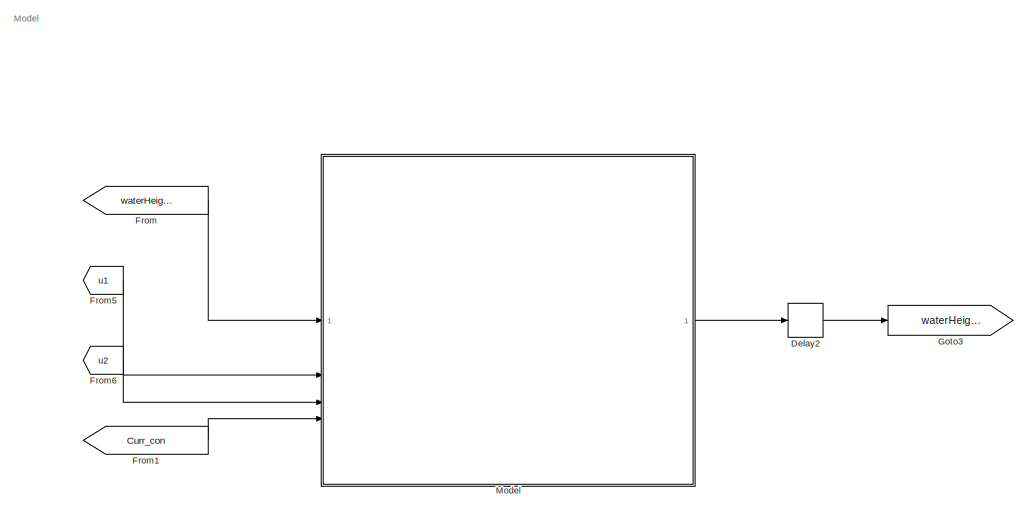
[diagram: root canvas - part 1/3, right side, full height]
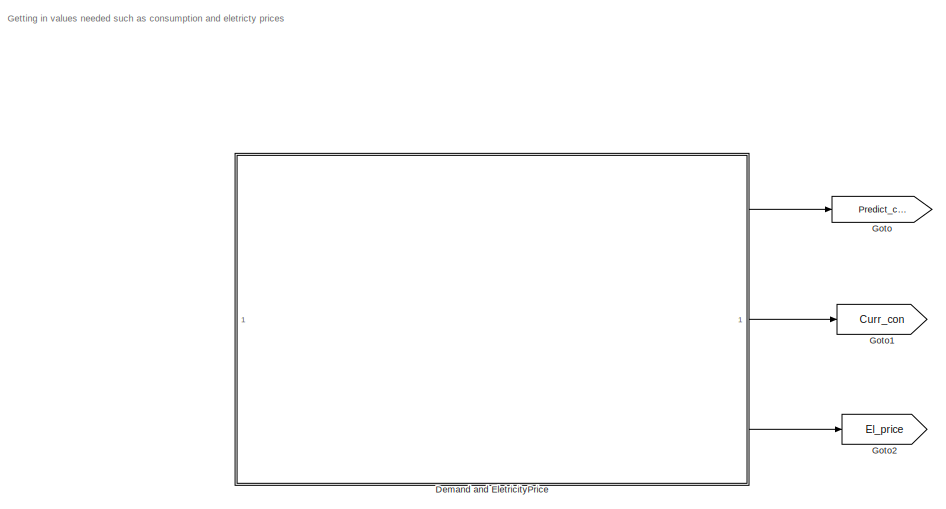
[diagram: root canvas - part 2/3, left side, full height]
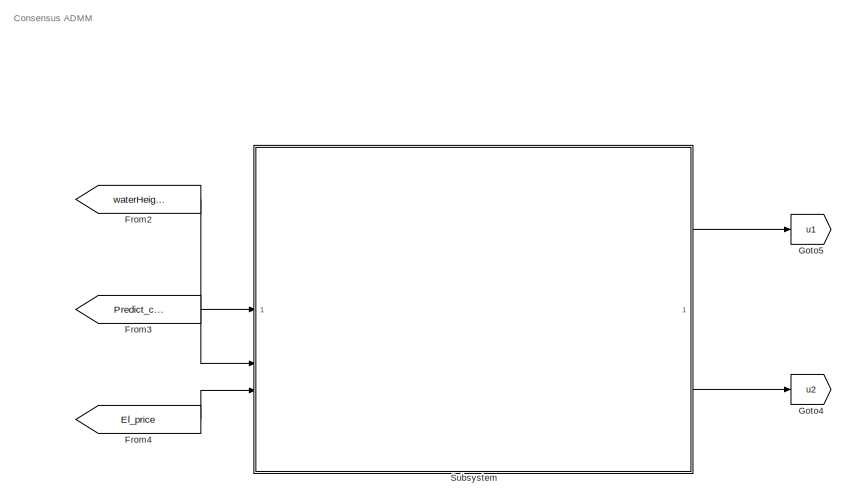
[diagram: root canvas - part 3/3, center side, full height]
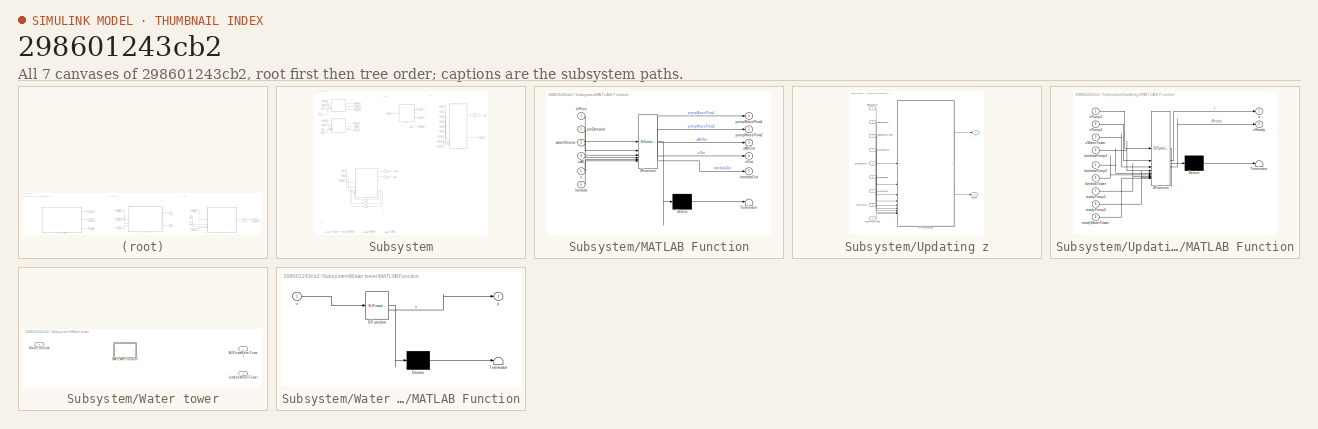
[diagram: thumbnail index - all 7 canvases of the model, root first then tree order]
MODEL slx_298601243cb2
KIND model
CONFIG AbsTol = auto
CONFIG EnableMultiTasking = off
CONFIG FixedStep = auto
CONFIG MaxStep = auto
CONFIG MinStep = auto
CONFIG RelTol = 1e-3
CONFIG SampleTimeConstraint = Unconstrained
CONFIG SolverName = VariableStepAuto
CONFIG StartTime = 600
CONFIG StopTime = 4800
BLOCK [Delay] Delay2
  DelayLength = 1
  InitialCondition = c.V/c.At*1e3
  InputPortMap = u0
BLOCK [SubSystem] Demand and EletricityPrice
  ReferencedSubsystem = DemandEletricityPrice
BLOCK [From] From
  GotoTag = waterHeightmm
  TagVisibility = global
BLOCK [From] From1
  GotoTag = Curr_con
  TagVisibility = global
BLOCK [From] From2
  GotoTag = waterHeightmm
  TagVisibility = global
BLOCK [From] From3
  GotoTag = Predict_con
  TagVisibility = global
BLOCK [From] From4
  GotoTag = El_price
  TagVisibility = global
BLOCK [From] From5
  GotoTag = u1
  TagVisibility = global
BLOCK [From] From6
  GotoTag = u2
  TagVisibility = global
BLOCK [Goto] Goto
  GotoTag = Predict_con
  TagVisibility = global
BLOCK [Goto] Goto1
  GotoTag = Curr_con
  TagVisibility = global
BLOCK [Goto] Goto2
  GotoTag = El_price
  TagVisibility = global
BLOCK [Goto] Goto3
  GotoTag = waterHeightmm
  TagVisibility = global
BLOCK [Goto] Goto4
  GotoTag = u2
  TagVisibility = global
BLOCK [Goto] Goto5
  GotoTag = u1
  TagVisibility = global
BLOCK [SubSystem] Model
  ReferencedSubsystem = SimulinkModel
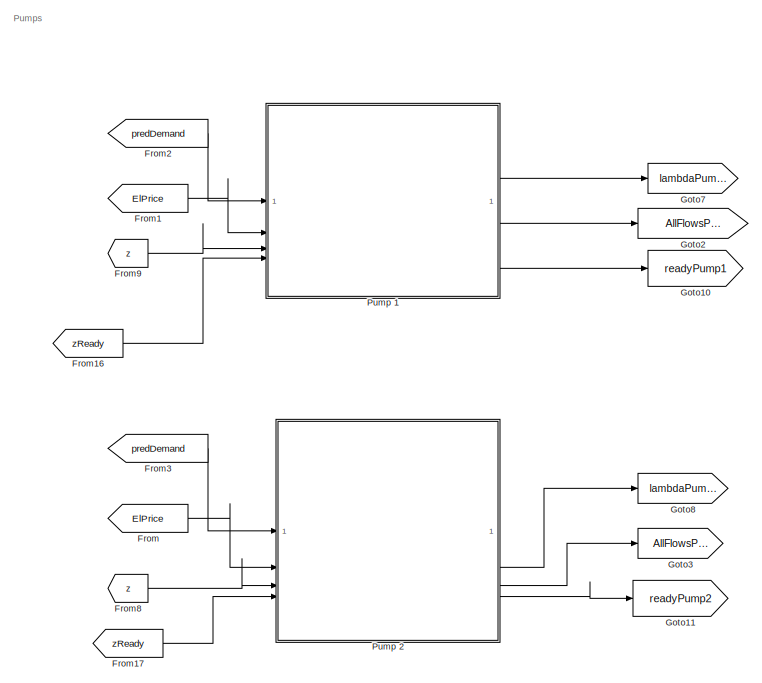
[diagram: Subsystem - part 1/5, top left region]
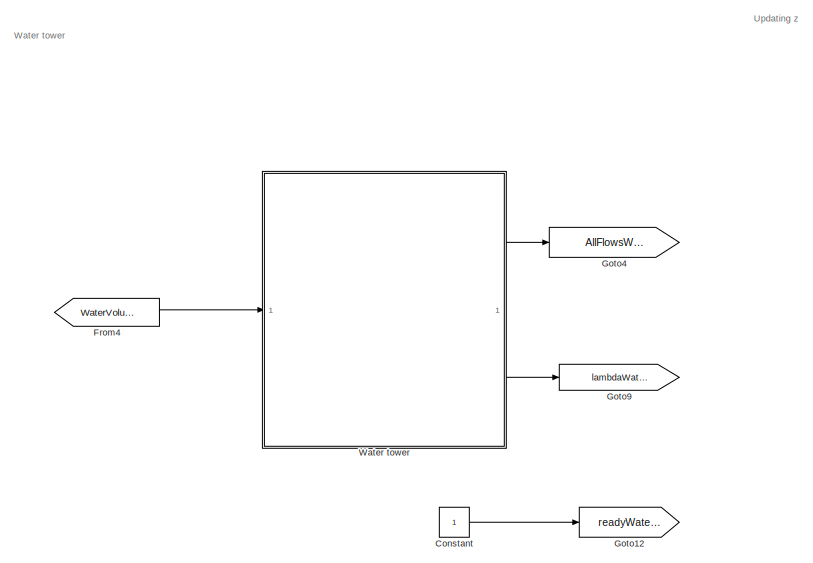
[diagram: Subsystem - part 2/5, top center region]
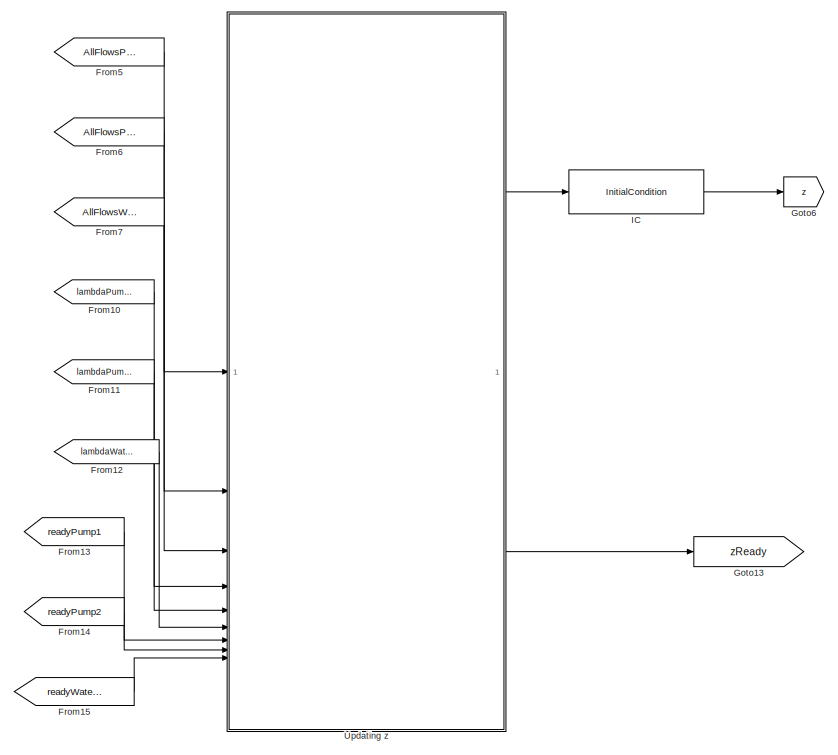
[diagram: Subsystem - part 3/5, top right region]
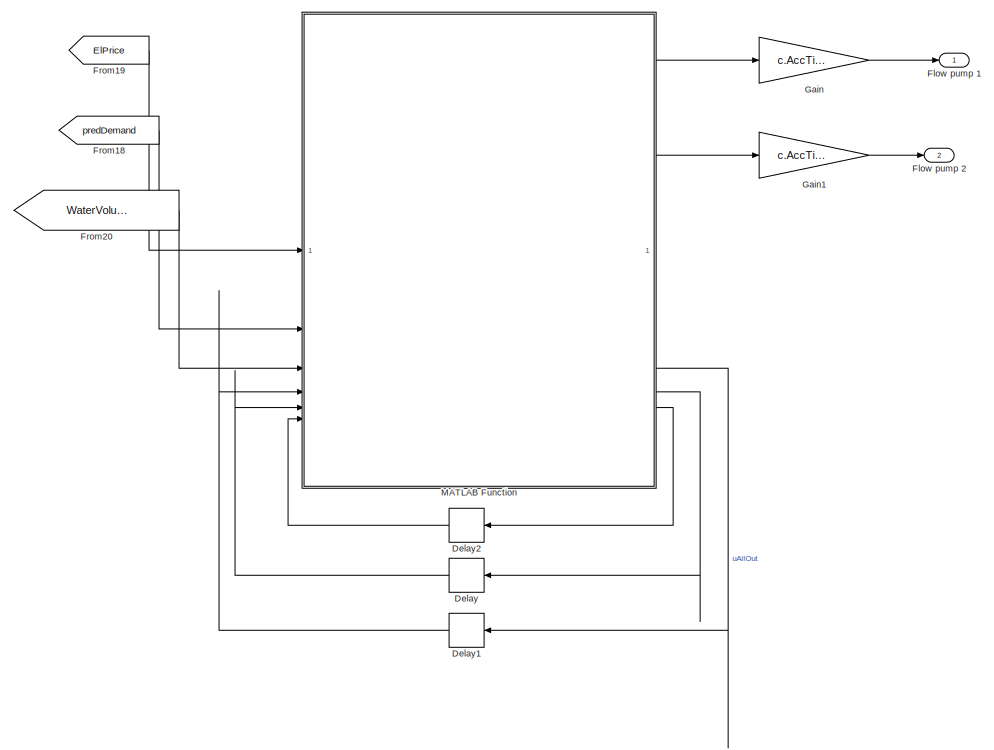
[diagram: Subsystem - part 4/5, bottom left region]
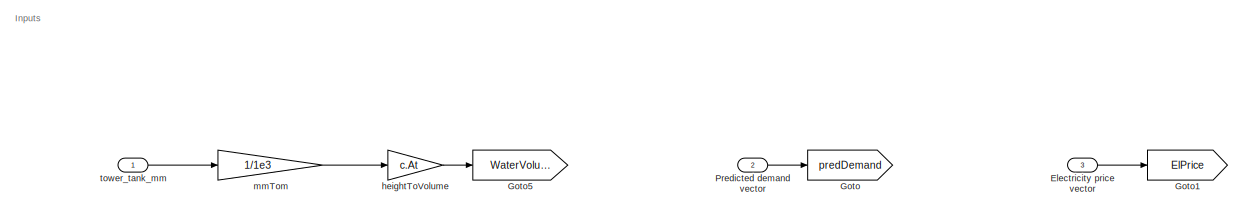
[diagram: Subsystem - part 5/5, bottom left region]
BLOCK [SubSystem] Subsystem
BLOCK [Constant] Subsystem/Constant
  Commented = on
BLOCK [Delay] Subsystem/Delay
  DelayLength = 1
  InitialCondition = zeros(c.Nu*c.Nc,1)
  InputPortMap = u0
  NameLocation = top
BLOCK [Delay] Subsystem/Delay1
  DelayLength = 1
  InitialCondition = zeros(c.Nu*c.Nc,c.Nu+1)
  InputPortMap = u0
  NameLocation = top
BLOCK [Delay] Subsystem/Delay2
  DelayLength = 1
  InitialCondition = zeros(c.Nu*c.Nc,c.Nu+1)
  InputPortMap = u0
  NameLocation = top
BLOCK [Inport] Subsystem/Electricity price vector
  Port = 3
BLOCK [Outport] Subsystem/Flow pump 1
BLOCK [Outport] Subsystem/Flow pump 2
  Port = 2
BLOCK [From] Subsystem/From
  Commented = on
  GotoTag = ElPrice
BLOCK [From] Subsystem/From1
  Commented = on
  GotoTag = ElPrice
BLOCK [From] Subsystem/From10
  Commented = on
  GotoTag = lambdaPump1
BLOCK [From] Subsystem/From11
  Commented = on
  GotoTag = lambdaPump2
BLOCK [From] Subsystem/From12
  Commented = on
  GotoTag = lambdaWaterTower
BLOCK [From] Subsystem/From13
  Commented = on
  GotoTag = readyPump1
BLOCK [From] Subsystem/From14
  Commented = on
  GotoTag = readyPump2
BLOCK [From] Subsystem/From15
  Commented = on
  GotoTag = readyWaterTower
BLOCK [From] Subsystem/From16
  Commented = on
  GotoTag = zReady
BLOCK [From] Subsystem/From17
  Commented = on
  GotoTag = zReady
BLOCK [From] Subsystem/From18
  GotoTag = predDemand
BLOCK [From] Subsystem/From19
  GotoTag = ElPrice
BLOCK [From] Subsystem/From2
  Commented = on
  GotoTag = predDemand
BLOCK [From] Subsystem/From20
  GotoTag = WaterVolume
BLOCK [From] Subsystem/From3
  Commented = on
  GotoTag = predDemand
BLOCK [From] Subsystem/From4
  Commented = on
  GotoTag = WaterVolume
BLOCK [From] Subsystem/From5
  Commented = on
  GotoTag = AllFlowsPump1
BLOCK [From] Subsystem/From6
  Commented = on
  GotoTag = AllFlowsPump2
BLOCK [From] Subsystem/From7
  Commented = on
  GotoTag = AllFlowsWaterTower
BLOCK [From] Subsystem/From8
  Commented = on
  GotoTag = z
BLOCK [From] Subsystem/From9
  Commented = on
  GotoTag = z
BLOCK [Gain] Subsystem/Gain
  Gain = c.AccTime
BLOCK [Gain] Subsystem/Gain1
  Gain = c.AccTime
BLOCK [Goto] Subsystem/Goto
  GotoTag = predDemand
BLOCK [Goto] Subsystem/Goto1
  GotoTag = ElPrice
BLOCK [Goto] Subsystem/Goto10
  Commented = on
  GotoTag = readyPump1
BLOCK [Goto] Subsystem/Goto11
  Commented = on
  GotoTag = readyPump2
BLOCK [Goto] Subsystem/Goto12
  Commented = on
  GotoTag = readyWaterTower
BLOCK [Goto] Subsystem/Goto13
  Commented = on
  GotoTag = zReady
BLOCK [Goto] Subsystem/Goto2
  Commented = on
  GotoTag = AllFlowsPump1
BLOCK [Goto] Subsystem/Goto3
  Commented = on
  GotoTag = AllFlowsPump2
BLOCK [Goto] Subsystem/Goto4
  Commented = on
  GotoTag = AllFlowsWaterTower
BLOCK [Goto] Subsystem/Goto5
  GotoTag = WaterVolume
BLOCK [Goto] Subsystem/Goto6
  Commented = on
  GotoTag = z
BLOCK [Goto] Subsystem/Goto7
  Commented = on
  GotoTag = lambdaPump1
BLOCK [Goto] Subsystem/Goto8
  Commented = on
  GotoTag = lambdaPump2
BLOCK [Goto] Subsystem/Goto9
  Commented = on
  GotoTag = lambdaWaterTower
BLOCK [InitialCondition] Subsystem/IC
  Commented = on
  Value = zeros(c.Nu*c.Nc,1)
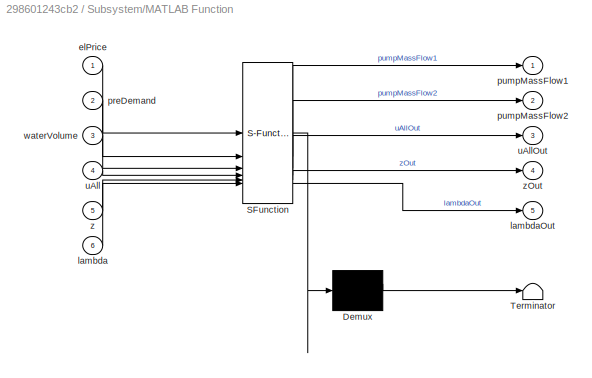
BLOCK [SubSystem] Subsystem/MATLAB Function
  ErrorFcn = Stateflow.Translate.translate
  LibrarySourceBlock = simulink/User-Defined\nFunctions/MATLAB Function
  PermitHierarchicalResolution = ExplicitOnly
  SFBlockType = MATLAB Function
  TreatAsAtomicUnit = on
BLOCK [Demux] Subsystem/MATLAB Function/ Demux 
  Outputs = 1
BLOCK [S-Function] Subsystem/MATLAB Function/ SFunction 
  EnableBusSupport = on
  FunctionName = sf_sfun
  PortCounts = [6 6]
  SFcnIsStateOwnerBlock = off
  SFunctionDeploymentMode = off
  Tag = Stateflow S-Function 8
BLOCK [Terminator] Subsystem/MATLAB Function/ Terminator 
BLOCK [Inport] Subsystem/MATLAB Function/elPrice
BLOCK [Inport] Subsystem/MATLAB Function/lambda
  Port = 6
BLOCK [Outport] Subsystem/MATLAB Function/lambdaOut
  Port = 5
BLOCK [Inport] Subsystem/MATLAB Function/preDemand
  Port = 2
BLOCK [Outport] Subsystem/MATLAB Function/pumpMassFlow1
BLOCK [Outport] Subsystem/MATLAB Function/pumpMassFlow2
  Port = 2
BLOCK [Inport] Subsystem/MATLAB Function/uAll
  Port = 4
BLOCK [Outport] Subsystem/MATLAB Function/uAllOut
  Port = 3
BLOCK [Inport] Subsystem/MATLAB Function/waterVolume
  Port = 3
BLOCK [Inport] Subsystem/MATLAB Function/z
  Port = 5
BLOCK [Outport] Subsystem/MATLAB Function/zOut
  Port = 4
BLOCK [Inport] Subsystem/Predicted demand vector
  Port = 2
BLOCK [SubSystem] Subsystem/Pump 1 
  Commented = on
  ReferencedSubsystem = consensusPump
  n_unit = 1
BLOCK [SubSystem] Subsystem/Pump 2
  Commented = on
  ReferencedSubsystem = consensusPump
  n_unit = 2
BLOCK [SubSystem] Subsystem/Updating z
  Commented = on
BLOCK [Inport] Subsystem/Updating z/AllFlowsPump1
BLOCK [Inport] Subsystem/Updating z/AllFlowsPump2
  Port = 2
BLOCK [Inport] Subsystem/Updating z/AllFlowsWaterTower
  Port = 3
BLOCK [SubSystem] Subsystem/Updating z/MATLAB Function
  ErrorFcn = Stateflow.Translate.translate
  LibrarySourceBlock = simulink/User-Defined\nFunctions/MATLAB Function
  PermitHierarchicalResolution = ExplicitOnly
  SFBlockType = MATLAB Function
  SystemSampleTime = 3600/c.AccTime
  TreatAsAtomicUnit = on
BLOCK [Demux] Subsystem/Updating z/MATLAB Function/ Demux 
  Outputs = 1
BLOCK [S-Function] Subsystem/Updating z/MATLAB Function/ SFunction 
  EnableBusSupport = on
  FunctionName = sf_sfun
  PortCounts = [9 3]
  SFcnIsStateOwnerBlock = off
  SFunctionDeploymentMode = off
  Tag = Stateflow S-Function 4
BLOCK [Terminator] Subsystem/Updating z/MATLAB Function/ Terminator 
BLOCK [Inport] Subsystem/Updating z/MATLAB Function/lambdaPump1
  Port = 4
BLOCK [Inport] Subsystem/Updating z/MATLAB Function/lambdaPump2
  Port = 5
BLOCK [Inport] Subsystem/Updating z/MATLAB Function/lambdaTower
  Port = 6
BLOCK [Inport] Subsystem/Updating z/MATLAB Function/readyPump1
  Port = 7
BLOCK [Inport] Subsystem/Updating z/MATLAB Function/readyPump2
  Port = 8
BLOCK [Inport] Subsystem/Updating z/MATLAB Function/readyWaterTower
  Port = 9
BLOCK [Inport] Subsystem/Updating z/MATLAB Function/xPump1
BLOCK [Inport] Subsystem/Updating z/MATLAB Function/xPump2
  Port = 2
BLOCK [Inport] Subsystem/Updating z/MATLAB Function/xWaterTower
  Port = 3
BLOCK [Outport] Subsystem/Updating z/MATLAB Function/z
BLOCK [Outport] Subsystem/Updating z/MATLAB Function/zReady
  Port = 2
BLOCK [Inport] Subsystem/Updating z/lambdaPump1
  Port = 4
BLOCK [Inport] Subsystem/Updating z/lambdaPump2
  Port = 5
BLOCK [Inport] Subsystem/Updating z/lambdaTower
  Port = 6
BLOCK [Inport] Subsystem/Updating z/readyPump1
  Port = 7
BLOCK [Inport] Subsystem/Updating z/readyPump2
  Port = 8
BLOCK [Inport] Subsystem/Updating z/readyWaterTower
  Port = 9
BLOCK [Outport] Subsystem/Updating z/z
BLOCK [Outport] Subsystem/Updating z/zReady
  Port = 2
BLOCK [SubSystem] Subsystem/Water tower
  Commented = on
BLOCK [Outport] Subsystem/Water tower/AllFlowsWaterTower
BLOCK [SubSystem] Subsystem/Water tower/MATLAB Function
  ErrorFcn = Stateflow.Translate.translate
  LibrarySourceBlock = simulink/User-Defined\nFunctions/MATLAB Function
  PermitHierarchicalResolution = ExplicitOnly
  SFBlockType = MATLAB Function
  SystemSampleTime = 3600/c.AccTime
  TreatAsAtomicUnit = on
BLOCK [Demux] Subsystem/Water tower/MATLAB Function/ Demux 
  Outputs = 1
BLOCK [S-Function] Subsystem/Water tower/MATLAB Function/ SFunction 
  EnableBusSupport = on
  FunctionName = sf_sfun
  PortCounts = [1 2]
  SFcnIsStateOwnerBlock = off
  SFunctionDeploymentMode = off
  Tag = Stateflow S-Function 5
BLOCK [Terminator] Subsystem/Water tower/MATLAB Function/ Terminator 
BLOCK [Inport] Subsystem/Water tower/MATLAB Function/u
BLOCK [Outport] Subsystem/Water tower/MATLAB Function/y
BLOCK [Inport] Subsystem/Water tower/Water Volume
BLOCK [Outport] Subsystem/Water tower/lambdaWaterTower
  Port = 2
BLOCK [Gain] Subsystem/heightToVolume
  Gain = c.At
BLOCK [Gain] Subsystem/mmTom
  Gain = 1/1e3
BLOCK [Inport] Subsystem/tower_tank_mm
ANNOTATION (root): Consensus ADMM
ANNOTATION (root): Getting in values needed such as consumption and eletricty prices
ANNOTATION (root): Model
ANNOTATION Subsystem: Inputs
ANNOTATION Subsystem: Pumps
ANNOTATION Subsystem: Updating z
ANNOTATION Subsystem: Water tower
LINE Delay2:1 -> Goto3:1
LINE Demand and EletricityPrice:1 -> Goto:1
LINE Demand and EletricityPrice:2 -> Goto1:1
LINE Demand and EletricityPrice:3 -> Goto2:1
LINE From1:1 -> Model:4
LINE From2:1 -> Subsystem:1
LINE From3:1 -> Subsystem:2
LINE From4:1 -> Subsystem:3
LINE From5:1 -> Model:2
LINE From6:1 -> Model:3
LINE From:1 -> Model:1
LINE Model:1 -> Delay2:1
LINE Subsystem/Constant:1 -> Subsystem/Goto12:1
LINE Subsystem/Delay1:1 -> Subsystem/MATLAB Function:4
LINE Subsystem/Delay2:1 -> Subsystem/MATLAB Function:6
LINE Subsystem/Delay:1 -> Subsystem/MATLAB Function:5
LINE Subsystem/Electricity price vector:1 -> Subsystem/Goto1:1
LINE Subsystem/From10:1 -> Subsystem/Updating z:4
LINE Subsystem/From11:1 -> Subsystem/Updating z:5
LINE Subsystem/From12:1 -> Subsystem/Updating z:6
LINE Subsystem/From13:1 -> Subsystem/Updating z:7
LINE Subsystem/From14:1 -> Subsystem/Updating z:8
LINE Subsystem/From15:1 -> Subsystem/Updating z:9
LINE Subsystem/From16:1 -> Subsystem/Pump 1 :4
LINE Subsystem/From17:1 -> Subsystem/Pump 2:4
LINE Subsystem/From18:1 -> Subsystem/MATLAB Function:2
LINE Subsystem/From19:1 -> Subsystem/MATLAB Function:1
LINE Subsystem/From1:1 -> Subsystem/Pump 1 :2
LINE Subsystem/From20:1 -> Subsystem/MATLAB Function:3
LINE Subsystem/From2:1 -> Subsystem/Pump 1 :1
LINE Subsystem/From3:1 -> Subsystem/Pump 2:1
LINE Subsystem/From4:1 -> Subsystem/Water tower:1
LINE Subsystem/From5:1 -> Subsystem/Updating z:1
LINE Subsystem/From6:1 -> Subsystem/Updating z:2
LINE Subsystem/From7:1 -> Subsystem/Updating z:3
LINE Subsystem/From8:1 -> Subsystem/Pump 2:3
LINE Subsystem/From9:1 -> Subsystem/Pump 1 :3
LINE Subsystem/From:1 -> Subsystem/Pump 2:2
LINE Subsystem/Gain1:1 -> Subsystem/Flow pump 2:1
LINE Subsystem/Gain:1 -> Subsystem/Flow pump 1:1
LINE Subsystem/IC:1 -> Subsystem/Goto6:1
LINE Subsystem/MATLAB Function:1 -> Subsystem/Gain:1
LINE Subsystem/MATLAB Function:2 -> Subsystem/Gain1:1
LINE Subsystem/MATLAB Function:3 -> Subsystem/Delay1:1
LINE Subsystem/MATLAB Function:4 -> Subsystem/Delay:1
LINE Subsystem/MATLAB Function:5 -> Subsystem/Delay2:1
LINE Subsystem/Predicted demand vector:1 -> Subsystem/Goto:1
LINE Subsystem/Pump 1 :2 -> Subsystem/Goto7:1
LINE Subsystem/Pump 1 :3 -> Subsystem/Goto2:1
LINE Subsystem/Pump 1 :4 -> Subsystem/Goto10:1
LINE Subsystem/Pump 2:2 -> Subsystem/Goto8:1
LINE Subsystem/Pump 2:3 -> Subsystem/Goto3:1
LINE Subsystem/Pump 2:4 -> Subsystem/Goto11:1
LINE Subsystem/Updating z/AllFlowsPump1:1 -> Subsystem/Updating z/MATLAB Function:1
LINE Subsystem/Updating z/AllFlowsPump2:1 -> Subsystem/Updating z/MATLAB Function:2
LINE Subsystem/Updating z/AllFlowsWaterTower:1 -> Subsystem/Updating z/MATLAB Function:3
LINE Subsystem/Updating z/MATLAB Function:1 -> Subsystem/Updating z/z:1
LINE Subsystem/Updating z/MATLAB Function:2 -> Subsystem/Updating z/zReady:1
LINE Subsystem/Updating z/lambdaPump1:1 -> Subsystem/Updating z/MATLAB Function:4
LINE Subsystem/Updating z/lambdaPump2:1 -> Subsystem/Updating z/MATLAB Function:5
LINE Subsystem/Updating z/lambdaTower:1 -> Subsystem/Updating z/MATLAB Function:6
LINE Subsystem/Updating z/readyPump1:1 -> Subsystem/Updating z/MATLAB Function:7
LINE Subsystem/Updating z/readyPump2:1 -> Subsystem/Updating z/MATLAB Function:8
LINE Subsystem/Updating z/readyWaterTower:1 -> Subsystem/Updating z/MATLAB Function:9
LINE Subsystem/Updating z:1 -> Subsystem/IC:1
LINE Subsystem/Updating z:2 -> Subsystem/Goto13:1
LINE Subsystem/Water tower:1 -> Subsystem/Goto4:1
LINE Subsystem/Water tower:2 -> Subsystem/Goto9:1
LINE Subsystem/heightToVolume:1 -> Subsystem/Goto5:1
LINE Subsystem/mmTom:1 -> Subsystem/heightToVolume:1
LINE Subsystem/tower_tank_mm:1 -> Subsystem/mmTom:1
LINE Subsystem:1 -> Goto5:1
LINE Subsystem:2 -> Goto4:1
CHART Subsystem/Updating z/MATLAB Function states=1 transitions=1
  STATE_LABEL 'eML_blk_kernel()'
  STATE_LABEL 'SCRIPT:\nfunction [z,zReady] = updateZ(xPump1,xPump2,xWaterTower,lambdaPump1,lambdaPump2,lambdaTower,readyPump1,readyPump2,readyWaterTower)\n%Here it is desired to determine the next value of z, \n%Loading in standard contants\nc=scaled_standard_constants; \n\n%Defining the size of the output\nz=zeros(c.Nu*c.Nc,1); \n\nfor k=1:c.iteration\n    zReady=0; \n    %Waiting for the agents to be ready \n    while re...<+461ch>'
CHART Subsystem/Water tower/MATLAB Function states=1 transitions=1
  STATE_LABEL 'eML_blk_kernel()'
  STATE_LABEL 'SCRIPT:\nfunction y = fcn(u)\n\ny = u;\n'
CHART Subsystem/MATLAB Function states=1 transitions=1
  STATE_LABEL 'eML_blk_kernel()'
  STATE_LABEL "SCRIPT:\nfunction [pumpMassFlow1, pumpMassFlow2, uAllOut,zOut,lambdaOut] = consensusADMM(elPrice,preDemand,waterVolume,uAll,z,lambda)\n%coder.extrinsic('u_consensus_fmincon')\ncoder.extrinsic('pump1Casadi')\ncoder.extrinsic('pump2Casadi')\ncoder.extrinsic('WaterTowerCasadi')\n\n%Loading in standard Constants \nc=scaled_standard_constants;  \nlambdaTemp=zeros(c.Nc*c.Nu,c.Nu+1); \n% Updating inital geuss for ...<+1730ch>"
CHART  states=0 transitions=0
CHART  states=0 transitions=0
CHART  states=0 transitions=0
